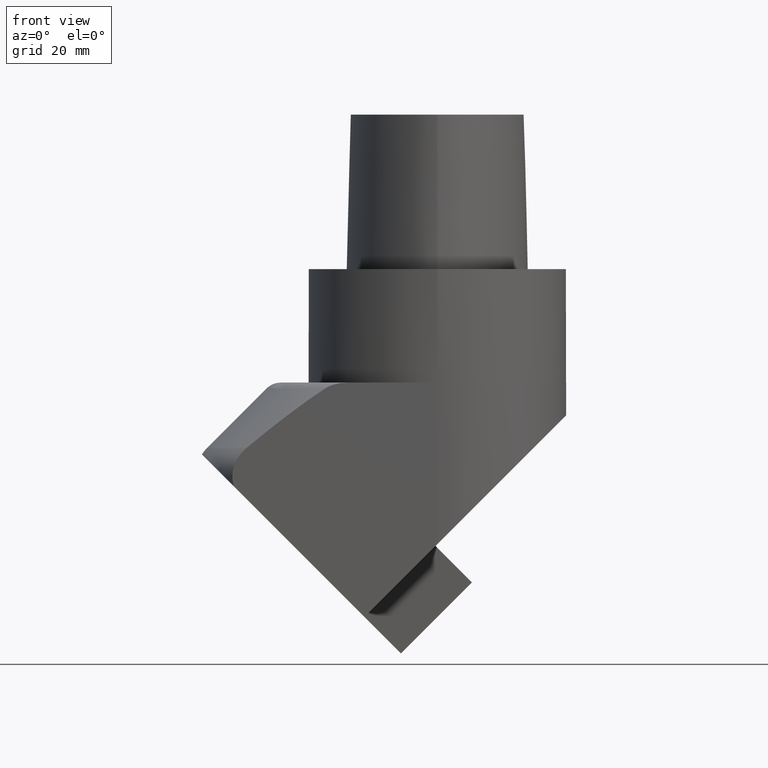
[diagram: clean part render]
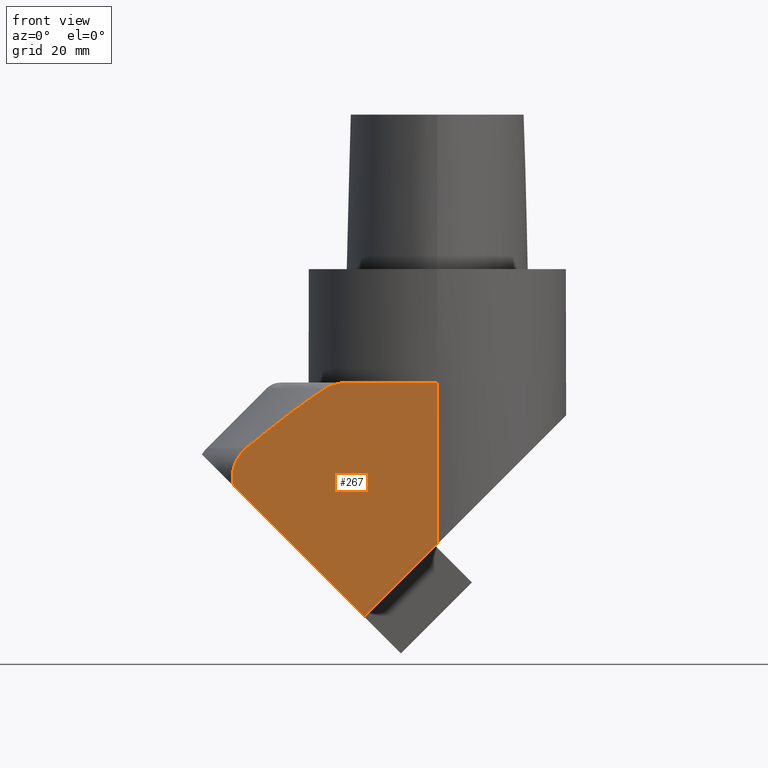
[diagram: same view with one face highlighted and labeled with its STEP entity id]
A machine part, front view. The second image highlights one B-rep face of the part: STEP entity #267.
In plain terms, the highlighted planar face has unit normal (0, 1, 0).
Its self-contained STEP definition (entity closure, byte-faithful):
#134=EDGE_CURVE('240[2]',#377,#378,#379,.T.);
#170=EDGE_CURVE('240[2]',#434,#435,#436,.T.);
#174=EDGE_CURVE('240[2]',#435,#441,#442,.T.);
#198=EDGE_CURVE('240[2]',#475,#377,#476,.T.);
#205=EDGE_CURVE('240[2]',#485,#475,#486,.T.);
#217=EDGE_CURVE('240[2]',#502,#434,#503,.T.);
#267=ADVANCED_FACE('240[2]',(#565),#566,.F.);
#278=EDGE_CURVE('240[2]',#378,#441,#578,.F.);
#326=EDGE_CURVE('240[2]',#502,#485,#634,.T.);
#377=VERTEX_POINT('',#686);
#378=VERTEX_POINT('',#687);
#379=(B_SPLINE_CURVE(2,(#689,#690,#691),.UNSPECIFIED.,.F.,.F.)B_SPLINE_CURVE_WITH_KNOTS((3,3),(-373.978020780172,-271.559833221413),.UNSPECIFIED.)RATIONAL_B_SPLINE_CURVE((8.17653887348629,7.61882561721952,6.82834340981449))BOUNDED_CURVE()REPRESENTATION_ITEM('')GEOMETRIC_REPRESENTATION_ITEM()CURVE());
#434=VERTEX_POINT('',#832);
#435=VERTEX_POINT('',#833);
#436=LINE('',#834,#835);
#441=VERTEX_POINT('',#937);
#442=LINE('',#938,#939);
#475=VERTEX_POINT('',#985);
#476=B_SPLINE_CURVE_WITH_KNOTS('',3,(#986,#987,#988,#989,#990,#991,#992,#993,#994,#995),.UNSPECIFIED.,.F.,.F.,(4,2,2,2,4),(2.7335188012095,2.87831632247054,3.02311384373158,3.12631424973931,3.18596247144899),.UNSPECIFIED.);
#485=VERTEX_POINT('',#1007);
#486=LINE('',#1008,#1009);
#502=VERTEX_POINT('',#1031);
#503=LINE('',#1032,#1033);
#565=FACE_OUTER_BOUND('',#1174,.T.);
#566=PLANE('',#1175);
#578=B_SPLINE_CURVE_WITH_KNOTS('',3,(#1206,#1207,#1208,#1209,#1210,#1211,#1212,#1213,#1214,#1215,#1216,#1217,#1218,#1219,#1220,#1221,#1222,#1223,#1224,#1225,#1226,#1227,#1228,#1229,#1230,#1231,#1232),.UNSPECIFIED.,.F.,.F.,(4,2,2,3,2,2,2,2,2,2,2,2,4),(53.9305327754439,54.233136596194,54.928124687012,55.6231127778299,56.3181008686479,57.0130889594659,57.7080770502839,58.4030651411018,59.1608113964559,59.91855765181,60.6763039071641,61.4340501625182,61.7899025449458),.UNSPECIFIED.);
#634=LINE('',#1733,#1734);
#686=CARTESIAN_POINT('',(-21.8023603758513,-25.0000000000201,-23.1715679043789));
#687=CARTESIAN_POINT('',(-37.0031585878106,-25.0,-34.6569547686));
#689=CARTESIAN_POINT('',(-21.8023603758447,-25.0000000000001,-23.1715679043594));
#690=CARTESIAN_POINT('',(-28.2811382543179,-25.0,-27.4298169238933));
#691=CARTESIAN_POINT('',(-37.0031585878105,-25.0,-34.6569547685999));
#832=CARTESIAN_POINT('',(-0.353553367078784,-25.0000000000588,-53.7261367498307));
#833=CARTESIAN_POINT('',(-14.1421356114782,-25.0000000000339,-67.5147189763034));
#834=CARTESIAN_POINT('',(-0.353553367078799,-25.0000000000588,-53.7261367498307));
#835=VECTOR('',#1830,11.5000000084509);
#937=CARTESIAN_POINT('',(-39.5622705559382,-24.999999999988,-42.0945840318436));
#938=CARTESIAN_POINT('',(-19.7989898572934,-25.0000000000237,-61.8578647304883));
#939=VECTOR('',#1831,18.6190476415758);
#985=CARTESIAN_POINT('',(-17.1958526017904,-25.0000000000284,-21.999999989082));
#986=CARTESIAN_POINT('',(-17.1958526017904,-25.0000000000284,-21.999999989082));
#987=CARTESIAN_POINT('',(-17.6785110059939,-25.0000000000276,-21.999999989082));
#988=CARTESIAN_POINT('',(-18.2080750514393,-25.0000000000266,-22.0295150206887));
#989=CARTESIAN_POINT('',(-19.2541060515855,-25.0000000000247,-22.173616910598));
#990=CARTESIAN_POINT('',(-19.7704597433585,-25.0000000000238,-22.2890247492805));
#991=CARTESIAN_POINT('',(-20.5576275978012,-25.0000000000224,-22.5414789504843));
#992=CARTESIAN_POINT('',(-20.9093765320111,-25.0000000000217,-22.679631923913));
#993=CARTESIAN_POINT('',(-21.4380350302956,-25.0000000000208,-22.9473963715229));
#994=CARTESIAN_POINT('',(-21.626243711416,-25.0000000000204,-23.0558132624201));
#995=CARTESIAN_POINT('',(-21.8023603758513,-25.0000000000201,-23.1715679043789));
#1007=CARTESIAN_POINT('',(-5.45546560060439E-005,-25.0000000000595,-21.999999989082));
#1008=CARTESIAN_POINT('',(-5.45546560068999E-005,-25.0000000000595,-21.999999989082));
#1009=VECTOR('',#1891,17.1957980471344);
#1031=CARTESIAN_POINT('',(-5.45546560041229E-005,-25.0000000000594,-53.3726379364309));
#1032=CARTESIAN_POINT('',(-5.45546559829191E-005,-25.0000000000595,-53.3726379364309));
#1033=VECTOR('',#1910,0.499922815501935);
#1174=EDGE_LOOP('',(#1993,#1994,#1995,#1996,#1997,#1998,#1999,#2000));
#1175=AXIS2_PLACEMENT_3D('',#2001,#2002,#2003);
#1206=CARTESIAN_POINT('',(-39.5622705559382,-24.999999999988,-42.0945840318436));
#1207=CARTESIAN_POINT('',(-39.5908061460085,-24.999999999988,-41.9889321854305));
#1208=CARTESIAN_POINT('',(-39.6169406323819,-25.0,-41.8822165878371));
#1209=CARTESIAN_POINT('',(-39.6946007020735,-25.0,-41.5286136860267));
#1210=CARTESIAN_POINT('',(-39.7349704169741,-25.0,-41.2792267102799));
#1211=CARTESIAN_POINT('',(-39.7874150532908,-25.0,-40.7876602841318));
#1212=CARTESIAN_POINT('',(-39.7994974842649,-25.0,-40.5454816349455));
#1213=CARTESIAN_POINT('',(-39.7994974842649,-25.0,-40.3138189380062));
#1214=CARTESIAN_POINT('',(-39.7994974842649,-25.0,-40.0821562410669));
#1215=CARTESIAN_POINT('',(-39.7874150532908,-25.0,-39.8399775918805));
#1216=CARTESIAN_POINT('',(-39.7349704169741,-25.0,-39.3484111657325));
#1217=CARTESIAN_POINT('',(-39.6946007020735,-25.0,-39.0990241899857));
#1218=CARTESIAN_POINT('',(-39.5863944847979,-25.0,-38.6063381471515));
#1219=CARTESIAN_POINT('',(-39.5185353378644,-25.0,-38.3629093619644));
#1220=CARTESIAN_POINT('',(-39.3609199555474,-25.0,-37.8941044378987));
#1221=CARTESIAN_POINT('',(-39.2711803485964,-25.0,-37.6687227085929));
#1222=CARTESIAN_POINT('',(-39.0712208812918,-25.0,-37.2276907138521));
#1223=CARTESIAN_POINT('',(-38.9499330997967,-25.0,-36.9928436163634));
#1224=CARTESIAN_POINT('',(-38.6761463605637,-25.0,-36.5285235860849));
#1225=CARTESIAN_POINT('',(-38.5236502723422,-25.0,-36.2990489612882));
#1226=CARTESIAN_POINT('',(-38.1948874293726,-25.0,-35.8577017758187));
#1227=CARTESIAN_POINT('',(-38.0185550157214,-25.0,-35.6457145561894));
#1228=CARTESIAN_POINT('',(-37.6534342923416,-25.0,-35.2482904641216));
#1229=CARTESIAN_POINT('',(-37.4646643672824,-25.0,-35.0628367017458));
#1230=CARTESIAN_POINT('',(-37.1889747907359,-25.0,-34.8142721019328));
#1231=CARTESIAN_POINT('',(-37.0975670432146,-25.0,-34.7351823918825));
#1232=CARTESIAN_POINT('',(-37.0031585878106,-25.0,-34.6569547686));
#1733=CARTESIAN_POINT('',(-5.45546560027373E-005,-25.0000000000594,-53.3726379364309));
#1734=VECTOR('',#2077,31.3726379473489);
#1830=DIRECTION('',(-0.707106781646208,1.27820459436826E-012,-0.707106780726887));
#1831=DIRECTION('',(-0.70710678118655,1.2753310753478E-012,0.707106781186545));
#1891=DIRECTION('',(-1.0,1.8054571573543E-012,0.0));
#1910=DIRECTION('',(-0.707106780209434,1.27917438923452E-012,-0.707106782163661));
#1993=ORIENTED_EDGE('',*,*,#174,.F.);
#1994=ORIENTED_EDGE('',*,*,#170,.F.);
#1995=ORIENTED_EDGE('',*,*,#217,.F.);
#1996=ORIENTED_EDGE('',*,*,#326,.T.);
#1997=ORIENTED_EDGE('',*,*,#205,.T.);
#1998=ORIENTED_EDGE('',*,*,#198,.T.);
#1999=ORIENTED_EDGE('',*,*,#134,.T.);
#2000=ORIENTED_EDGE('',*,*,#278,.T.);
#2001=CARTESIAN_POINT('',(-32.9646447038871,-24.9999999999999,-75.9999999890822));
#2002=DIRECTION('',(3.43647482985794E-027,1.0,1.90320540365448E-015));
#2003=DIRECTION('',(1.0,0.0,-1.80562477558088E-012));
#2077=DIRECTION('',(0.0,0.0,1.0));